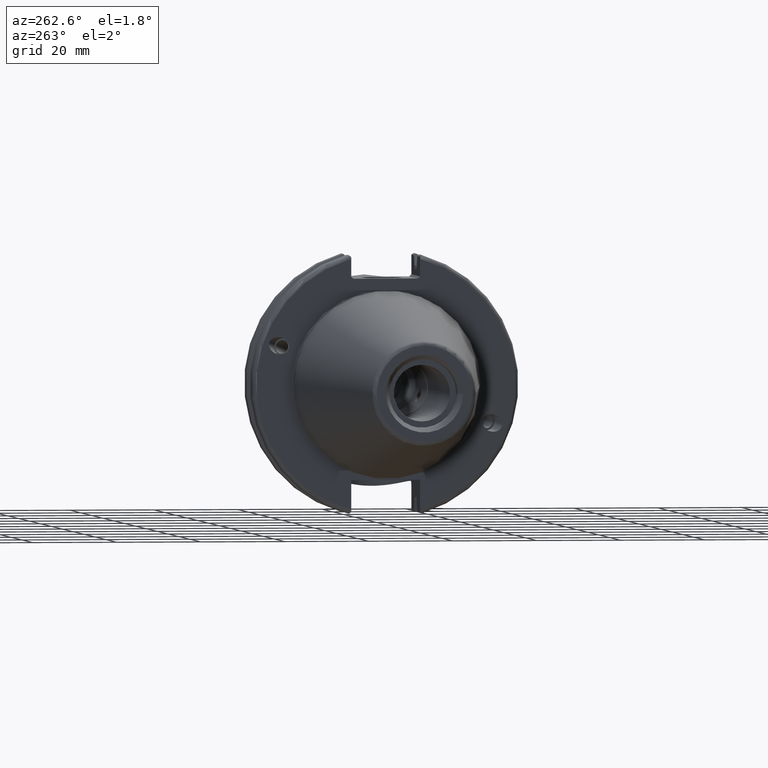
[diagram: clean part render]
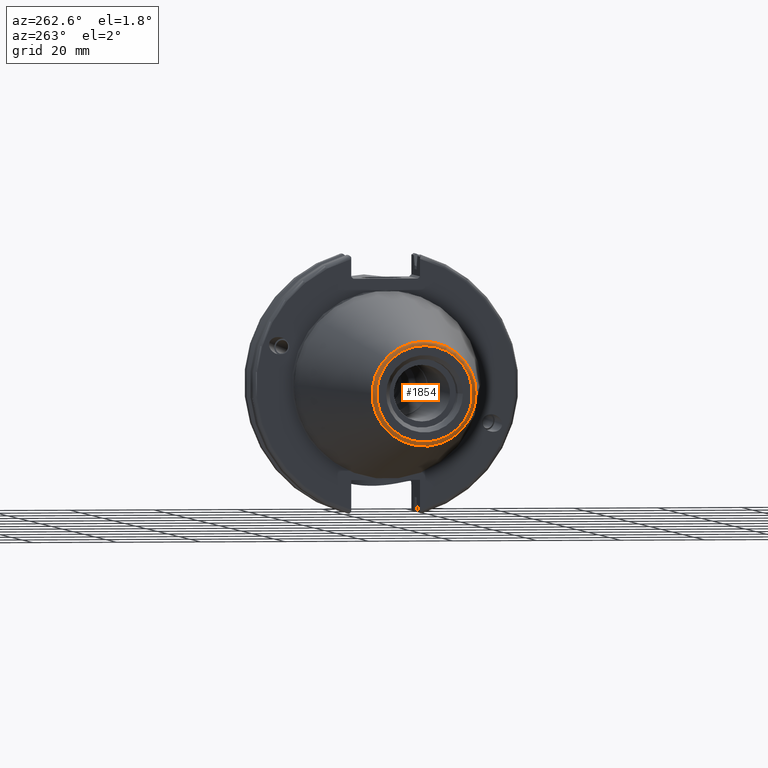
[diagram: same view with one face highlighted and labeled with its STEP entity id]
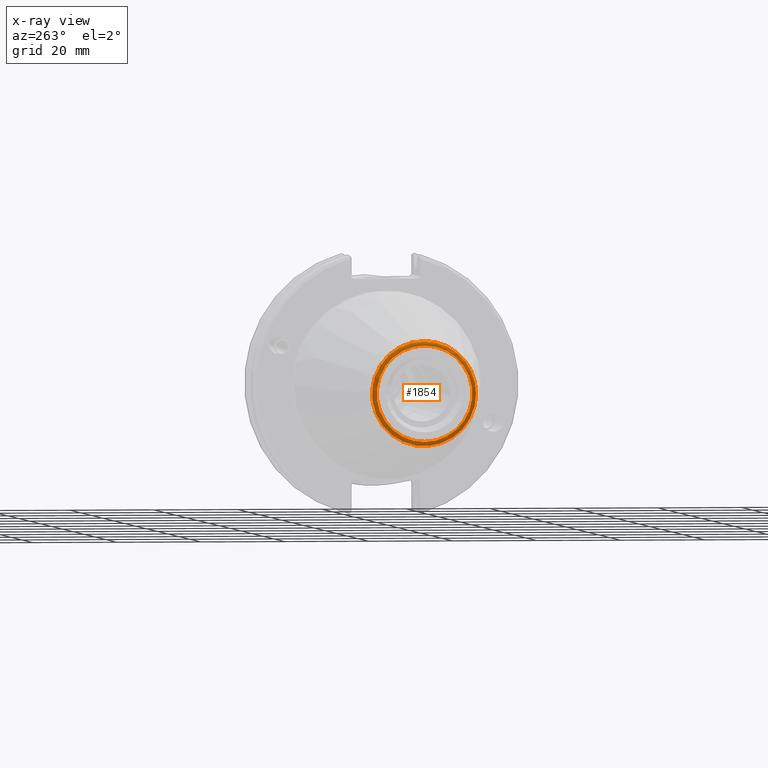
[diagram: x-ray of the same camera — body ghosted, the highlighted face saturated]
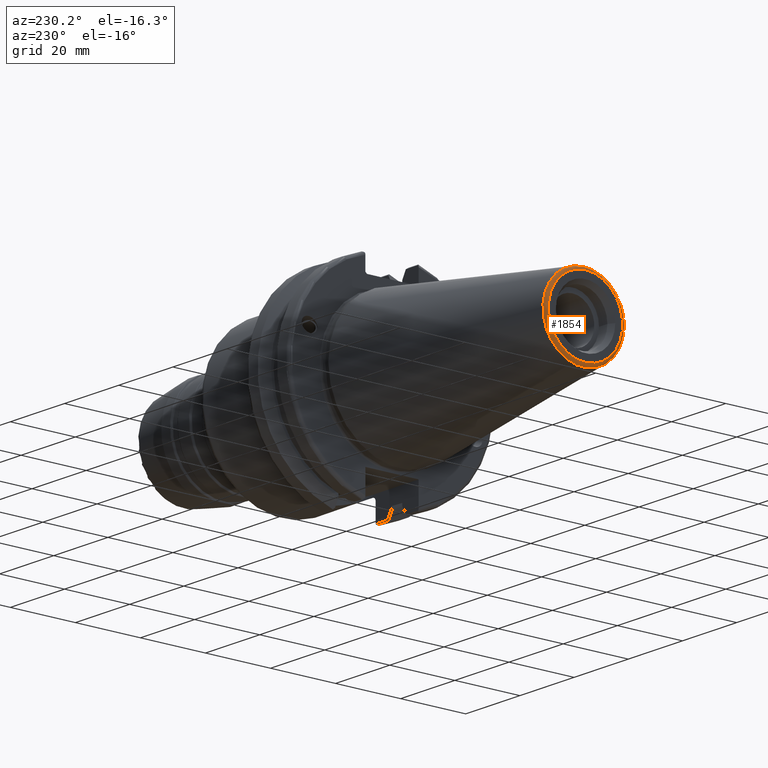
[diagram: same view with one face highlighted and labeled with its STEP entity id]
A machine part, auxiliary view. The second image highlights one B-rep face of the part: STEP entity #1854.
The next image is the same camera in x-ray: the body ghosted, the highlighted face saturated — about 0% of this face is hidden behind the body in this view.
A second angle (auxiliary view) of the same face is appended — the face is thin or edge-on in the first view.
In plain terms, the highlighted toroidal blend (fillet) surface has major radius 11.4071 mm and minor (blend) radius 1 mm.
Its self-contained STEP definition (entity closure, byte-faithful):
#115=TOROIDAL_SURFACE('',#2107,11.4071305970304,1.);
#242=FACE_OUTER_BOUND('',#362,.T.);
#362=EDGE_LOOP('',(#1604,#1605,#1606,#1607,#1608));
#688=CIRCLE('',#2108,12.3966635780937);
#689=CIRCLE('',#2109,12.3966635780937);
#690=CIRCLE('',#2110,1.);
#691=CIRCLE('',#2111,11.4071305970304);
#875=VERTEX_POINT('',#3550);
#876=VERTEX_POINT('',#3551);
#877=VERTEX_POINT('',#3554);
#1133=EDGE_CURVE('',#875,#876,#688,.T.);
#1134=EDGE_CURVE('',#876,#875,#689,.T.);
#1135=EDGE_CURVE('',#875,#877,#690,.T.);
#1136=EDGE_CURVE('',#877,#877,#691,.T.);
#1604=ORIENTED_EDGE('',*,*,#1133,.T.);
#1605=ORIENTED_EDGE('',*,*,#1134,.T.);
#1606=ORIENTED_EDGE('',*,*,#1135,.T.);
#1607=ORIENTED_EDGE('',*,*,#1136,.T.);
#1608=ORIENTED_EDGE('',*,*,#1135,.F.);
#1854=ADVANCED_FACE('',(#242),#115,.T.);
#2107=AXIS2_PLACEMENT_3D('',#3549,#2635,#2636);
#2108=AXIS2_PLACEMENT_3D('',#3552,#2637,#2638);
#2109=AXIS2_PLACEMENT_3D('',#3553,#2639,#2640);
#2110=AXIS2_PLACEMENT_3D('',#3555,#2641,#2642);
#2111=AXIS2_PLACEMENT_3D('',#3556,#2643,#2644);
#2635=DIRECTION('center_axis',(1.,0.,0.));
#2636=DIRECTION('ref_axis',(0.,0.,-1.));
#2637=DIRECTION('center_axis',(-1.,0.,0.));
#2638=DIRECTION('ref_axis',(0.,-1.,3.06161699786838E-17));
#2639=DIRECTION('center_axis',(-1.,0.,0.));
#2640=DIRECTION('ref_axis',(0.,-1.,3.06161699786838E-17));
#2641=DIRECTION('center_axis',(0.,-1.,-1.22464679914735E-16));
#2642=DIRECTION('ref_axis',(0.,-1.22464679914735E-16,1.));
#2643=DIRECTION('center_axis',(1.,0.,0.));
#2644=DIRECTION('ref_axis',(0.,-1.,1.83697019872103E-16));
#3549=CARTESIAN_POINT('Origin',(-67.25,0.,0.));
#3550=CARTESIAN_POINT('',(-67.3943068930717,-1.5181534371019E-15,12.3966635780937));
#3551=CARTESIAN_POINT('',(-67.3943068930718,-12.3966635780937,-1.5181534371019E-15));
#3552=CARTESIAN_POINT('Origin',(-67.3943068930717,0.,-1.89769179637738E-15));
#3553=CARTESIAN_POINT('Origin',(-67.3943068930717,0.,-1.89769179637738E-15));
#3554=CARTESIAN_POINT('',(-68.25,-1.39697059731091E-15,11.4071305970304));
#3555=CARTESIAN_POINT('Origin',(-67.25,-1.39697059731091E-15,11.4071305970304));
#3556=CARTESIAN_POINT('Origin',(-68.25,0.,0.));